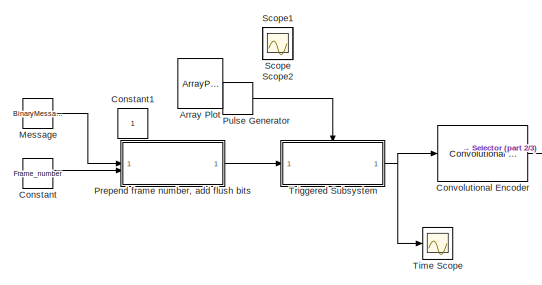
[diagram: root canvas - part 1/3, top left region]
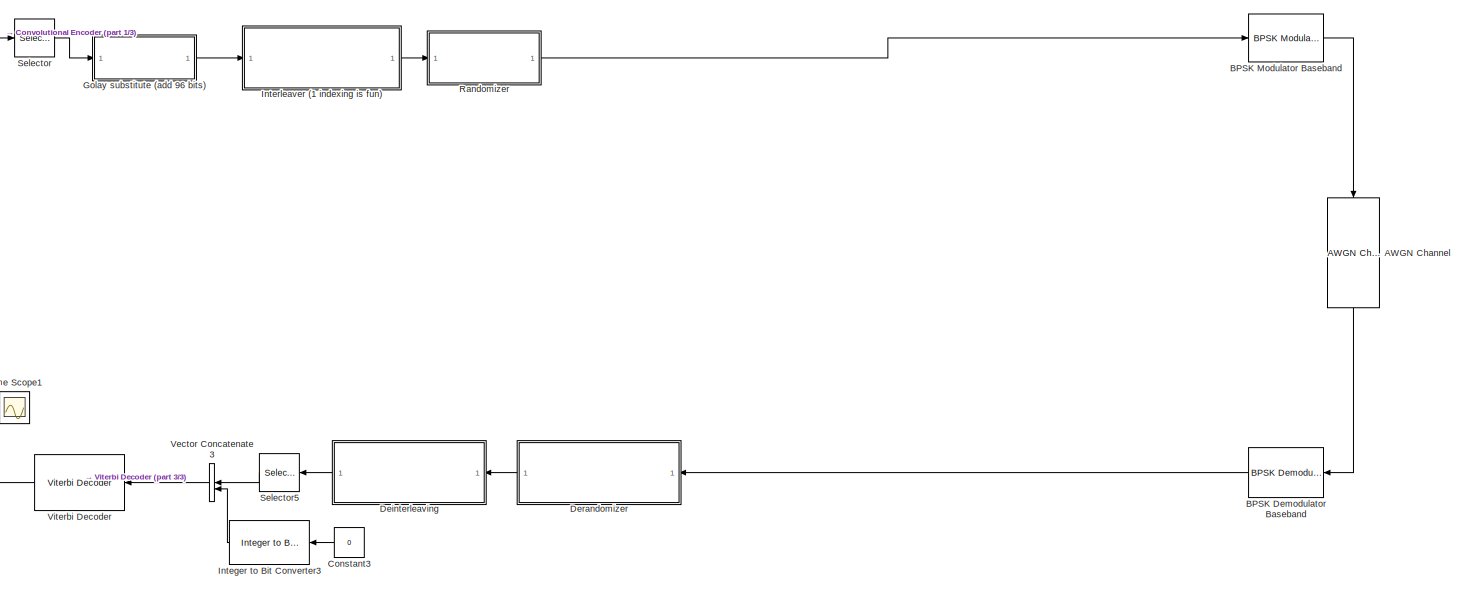
[diagram: root canvas - part 2/3, most of the canvas]
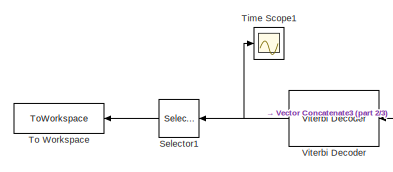
[diagram: root canvas - part 3/3, bottom left region]
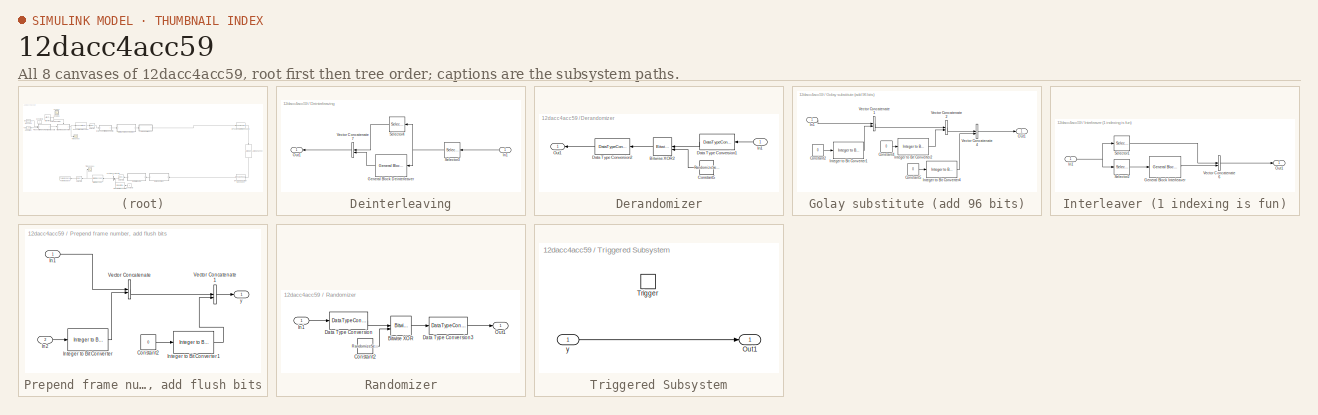
[diagram: thumbnail index - all 8 canvases of the model, root first then tree order]
MODEL slx_12dacc4acc59
KIND model
CONFIG AbsTol = auto
CONFIG EnableMultiTasking = off
CONFIG FixedStep = auto
CONFIG MaxStep = auto
CONFIG MinStep = auto
CONFIG RelTol = 1e-3
CONFIG SampleTimeConstraint = Unconstrained
CONFIG SolverName = VariableStepAuto
CONFIG StartTime = 0.0
CONFIG StopTime = 5
BLOCK [Constant]  Message
  Value = BinaryMessage
BLOCK [Reference] AWGN Channel  REF=commchan3/AWGN
Channel
  NameLocation = left
  SourceBlock = commchan3/AWGN\nChannel
  SourceType = AWGN Channel
BLOCK [ArrayPlot] Array Plot
  DefaultConfigurationName = dsp.scopes.ArrayPlotBlockSpecification
  GraphicalSettings = {"Style":{"BackgroundColor":[0.12941176470588237,0.12941176470588237,0.12941176470588237],"AxesColor":[0.07058823529411765,0.07058823529411765,0.07058823529411765],"LabelsColor":[0.8509803921568627,0.8509803921568627,0.8509803921568627],"PreserveColors":false,"Visible":[true],"LineStyle":["-"],"LineWidth":[1.5],"BarWidth":[0.9],"LineColor":[[1,0.9098039215686274,0.39215686274509803]],"LineFaceAlph...<+604ch>
  IOType = viewer
  IsFloating = on
  MultipleDisplayCache = {"PlotAsMagnitudePhase":[false],"ShowGrid":[true],"ShowLegend":[false],"Title":[""],"XLabel":[""],"YLabel":["Amplitude"],"YLimits":["[-10 10]"]}
  ScopeFrameLocation = window
  WasSavedAsWebScope = on
  WindowPosition = [609.000000,57.000000,800.000000,500.000000,]
  YLimits = [-10 10]
BLOCK [Reference] BPSK Demodulator Baseband  REF=commdigbbndpm3/BPSK
Demodulator
Baseband
  LibrarySourceBlock = commhdldigbbndpm/BPSK\nDemodulator\nBaseband
  NameLocation = top
  SourceBlock = commdigbbndpm3/BPSK\nDemodulator\nBaseband
  SourceType = BPSK Demodulator Baseband
BLOCK [Reference] BPSK Modulator Baseband  REF=commdigbbndpm3/BPSK
Modulator
Baseband
  LibrarySourceBlock = commhdldigbbndpm/BPSK\nModulator\nBaseband
  SourceBlock = commdigbbndpm3/BPSK\nModulator\nBaseband
  SourceType = BPSK Modulator Baseband
BLOCK [Constant] Constant
  Value = Frame_number
BLOCK [Constant] Constant1
  IOType = siggen
BLOCK [Constant] Constant3
  NameLocation = top
  Value = 0
BLOCK [Reference] Convolutional Encoder  REF=commcnvcod2/Convolutional
Encoder
  LibrarySourceBlock = commhdlcnvcod/Convolutional\nEncoder
  SourceBlock = commcnvcod2/Convolutional\nEncoder
  SourceType = Convolutional Encoder
BLOCK [SubSystem] Deinterleaving
  NameLocation = top
BLOCK [Reference] Deinterleaving/General Block Deinterleaver  REF=commblkintrlv2/General Block
Deinterleaver
  NameLocation = top
  SourceBlock = commblkintrlv2/General Block\nDeinterleaver
  SourceType = General Block Deinterleaver
  StatePerturbationForJacobian = 1.0e-05
BLOCK [Inport] Deinterleaving/In1
BLOCK [Outport] Deinterleaving/Out1
BLOCK [Selector] Deinterleaving/Selector3
  IndexOptions = Index vector (dialog)
  Indices = [2:368]
  NameLocation = top
  OutputSizes = 1
BLOCK [Selector] Deinterleaving/Selector4
  IndexOptions = Index vector (dialog)
  Indices = [1]
  NameLocation = top
  OutputSizes = 1
BLOCK [Concatenate] Deinterleaving/Vector Concatenate7
  NameLocation = top
BLOCK [SubSystem] Derandomizer
  NameLocation = top
BLOCK [Reference] Derandomizer/Bitwise XOR2  REF=simulink/Logic and Bit
Operations/Bitwise
Operator
  LibrarySourceBlock = simulink/Quick Insert/Logic and Bit\nOperations/Bitwise XOR
  NameLocation = top
  SourceBlock = simulink/Logic and Bit\nOperations/Bitwise\nOperator
  SourceType = Bitwise Operator
BLOCK [Constant] Derandomizer/Constant5
  NameLocation = top
  Value = RandomizeSequence
BLOCK [DataTypeConversion] Derandomizer/Data Type Conversion1
  NameLocation = top
  OutDataTypeStr = boolean
  RndMeth = Floor
  SaturateOnIntegerOverflow = off
BLOCK [DataTypeConversion] Derandomizer/Data Type Conversion2
  NameLocation = top
  OutDataTypeStr = double
  RndMeth = Floor
  SaturateOnIntegerOverflow = off
BLOCK [Inport] Derandomizer/In1
BLOCK [Outport] Derandomizer/Out1
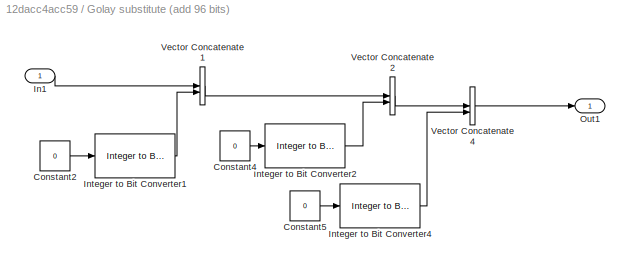
BLOCK [SubSystem] Golay substitute (add 96 bits)
BLOCK [Constant] Golay substitute (add 96 bits)/Constant2
  Value = 0
BLOCK [Constant] Golay substitute (add 96 bits)/Constant4
  Value = 0
BLOCK [Constant] Golay substitute (add 96 bits)/Constant5
  Value = 0
BLOCK [Inport] Golay substitute (add 96 bits)/In1
BLOCK [Reference] Golay substitute (add 96 bits)/Integer to Bit Converter1  REF=simulink/Logic and Bit
Operations/Integer to Bit
Converter
  SourceBlock = simulink/Logic and Bit\nOperations/Integer to Bit\nConverter
  SourceType = Integer to Bit Converter
BLOCK [Reference] Golay substitute (add 96 bits)/Integer to Bit Converter2  REF=simulink/Logic and Bit
Operations/Integer to Bit
Converter
  SourceBlock = simulink/Logic and Bit\nOperations/Integer to Bit\nConverter
  SourceType = Integer to Bit Converter
BLOCK [Reference] Golay substitute (add 96 bits)/Integer to Bit Converter4  REF=simulink/Logic and Bit
Operations/Integer to Bit
Converter
  SourceBlock = simulink/Logic and Bit\nOperations/Integer to Bit\nConverter
  SourceType = Integer to Bit Converter
BLOCK [Outport] Golay substitute (add 96 bits)/Out1
BLOCK [Concatenate] Golay substitute (add 96 bits)/Vector Concatenate1
BLOCK [Concatenate] Golay substitute (add 96 bits)/Vector Concatenate2
BLOCK [Concatenate] Golay substitute (add 96 bits)/Vector Concatenate4
BLOCK [Reference] Integer to Bit Converter3  REF=simulink/Logic and Bit
Operations/Integer to Bit
Converter
  NameLocation = top
  SourceBlock = simulink/Logic and Bit\nOperations/Integer to Bit\nConverter
  SourceType = Integer to Bit Converter
BLOCK [SubSystem] Interleaver (1 indexing is fun)
BLOCK [Reference] Interleaver (1 indexing is fun)/General Block Interleaver  REF=commblkintrlv2/General Block
Interleaver
  SourceBlock = commblkintrlv2/General Block\nInterleaver
  SourceType = General Block Interleaver
  StatePerturbationForJacobian = 1.0e-05
BLOCK [Inport] Interleaver (1 indexing is fun)/In1
BLOCK [Outport] Interleaver (1 indexing is fun)/Out1
BLOCK [Selector] Interleaver (1 indexing is fun)/Selector1
  IndexOptions = Index vector (dialog)
  Indices = [1]
  OutputSizes = 1
BLOCK [Selector] Interleaver (1 indexing is fun)/Selector2
  IndexOptions = Index vector (dialog)
  Indices = [2:368]
  OutputSizes = 1
BLOCK [Concatenate] Interleaver (1 indexing is fun)/Vector Concatenate6
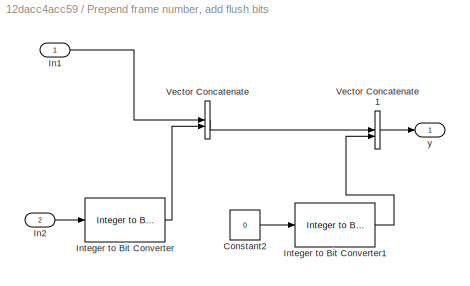
BLOCK [SubSystem] Prepend frame number, add flush bits
BLOCK [Constant] Prepend frame number, add flush bits/Constant2
  Value = 0
BLOCK [Inport] Prepend frame number, add flush bits/In1
BLOCK [Inport] Prepend frame number, add flush bits/In2
  Port = 2
BLOCK [Reference] Prepend frame number, add flush bits/Integer to Bit Converter  REF=simulink/Logic and Bit
Operations/Integer to Bit
Converter
  SourceBlock = simulink/Logic and Bit\nOperations/Integer to Bit\nConverter
  SourceType = Integer to Bit Converter
BLOCK [Reference] Prepend frame number, add flush bits/Integer to Bit Converter1  REF=simulink/Logic and Bit
Operations/Integer to Bit
Converter
  SourceBlock = simulink/Logic and Bit\nOperations/Integer to Bit\nConverter
  SourceType = Integer to Bit Converter
BLOCK [Concatenate] Prepend frame number, add flush bits/Vector Concatenate
BLOCK [Concatenate] Prepend frame number, add flush bits/Vector Concatenate1
BLOCK [Outport] Prepend frame number, add flush bits/y
BLOCK [DiscretePulseGenerator] Pulse Generator
BLOCK [SubSystem] Randomizer
BLOCK [Reference] Randomizer/Bitwise XOR  REF=simulink/Logic and Bit
Operations/Bitwise
Operator
  LibrarySourceBlock = simulink/Quick Insert/Logic and Bit\nOperations/Bitwise XOR
  SourceBlock = simulink/Logic and Bit\nOperations/Bitwise\nOperator
  SourceType = Bitwise Operator
BLOCK [Constant] Randomizer/Constant2
  Value = RandomizeSequence
BLOCK [DataTypeConversion] Randomizer/Data Type Conversion
  OutDataTypeStr = boolean
  RndMeth = Floor
  SaturateOnIntegerOverflow = off
BLOCK [DataTypeConversion] Randomizer/Data Type Conversion3
  OutDataTypeStr = double
  RndMeth = Floor
  SaturateOnIntegerOverflow = off
BLOCK [Inport] Randomizer/In1
BLOCK [Outport] Randomizer/Out1
BLOCK [Scope] Scope
  Floating = off
  IOType = viewer
  NumInputPorts = 1
  ScopeSpecificationString = Simulink.scopes.TimeScopeBlockCfg('CurrentConfiguration', extmgr.ConfigurationSet(extmgr.Configuration('Core','General UI',true),extmgr.Configuration('Core','Source UI',true),extmgr.Configuration('Sources','WiredSimulink',true,'DataLoggingVariableName','ScopeData1'),extmgr.Configuration('Visuals','Time Domain',true,'SerializedDisplays',{struct('MinYLimReal','-0.125','MaxYLimReal','1.125','YLabelRe...<+6619ch>
BLOCK [Scope] Scope1
  Floating = off
  IOType = viewer
  NumInputPorts = 1
  ScopeSpecificationString = Simulink.scopes.TimeScopeBlockCfg('CurrentConfiguration', extmgr.ConfigurationSet(extmgr.Configuration('Core','General UI',true),extmgr.Configuration('Core','Source UI',true),extmgr.Configuration('Sources','WiredSimulink',true,'DataLoggingVariableName','ScopeData1'),extmgr.Configuration('Visuals','Time Domain',true,'SerializedDisplays',{struct('MinYLimReal','-0.125','MaxYLimReal','1.125','YLabelRe...<+1467ch>
BLOCK [Scope] Scope2
  Floating = off
  IOType = viewer
  NumInputPorts = 1
  ScopeSpecificationString = Simulink.scopes.TimeScopeBlockCfg('CurrentConfiguration', extmgr.ConfigurationSet(extmgr.Configuration('Core','General UI',true),extmgr.Configuration('Core','Source UI',true),extmgr.Configuration('Sources','WiredSimulink',true,'DataLoggingVariableName','ScopeData1'),extmgr.Configuration('Visuals','Time Domain',true,'SerializedDisplays',{struct('MinYLimReal','-10.00000','MaxYLimReal','10.00000','YL...<+1454ch>
BLOCK [Selector] Selector
  IndexOptions = Index vector (dialog)
  Indices = [1:272]
  OutputSizes = 1
BLOCK [Selector] Selector1
  IndexOptions = Index vector (dialog)
  Indices = [1:144]
  NameLocation = top
  OutputSizes = 1
BLOCK [Selector] Selector5
  IndexOptions = Index vector (dialog)
  Indices = [1:272]
  NameLocation = top
  OutputSizes = 1
BLOCK [Scope] Time Scope
  DefaultConfigurationName = spbscopes.TimeScopeBlockCfg
  Floating = off
  NumInputPorts = 1
  ScopeSpecificationString = spbscopes.TimeScopeBlockCfg('CurrentConfiguration', extmgr.ConfigurationSet(extmgr.Configuration('Core','General UI',true,'FigureColor',[0.156862745098039 0.156862745098039 0.156862745098039]),extmgr.Configuration('Core','Source UI',true),extmgr.Configuration('Sources','WiredSimulink',true,'DataLoggingVariableName','ScopeData2'),extmgr.Configuration('Visuals','Time Domain',true,'DisplayPropertyDef...<+1645ch>
  UserDataPersistent = on
BLOCK [Scope] Time Scope1
  DefaultConfigurationName = spbscopes.TimeScopeBlockCfg
  Floating = off
  NumInputPorts = 1
  ScopeSpecificationString = spbscopes.TimeScopeBlockCfg('CurrentConfiguration', extmgr.ConfigurationSet(extmgr.Configuration('Core','General UI',true,'FigureColor',[0.156862745098039 0.156862745098039 0.156862745098039]),extmgr.Configuration('Core','Source UI',true),extmgr.Configuration('Sources','WiredSimulink',true,'DataLoggingVariableName','ScopeData3'),extmgr.Configuration('Visuals','Time Domain',true,'DisplayPropertyDef...<+1639ch>
  UserDataPersistent = on
BLOCK [ToWorkspace] To Workspace
  FixptAsFi = on
  MaxDataPoints = inf
  NameLocation = top
  SampleTime = -1
  Save2DSignal = 2-D array (concatenate along first dimension)
  VariableName = simout
BLOCK [SubSystem] Triggered Subsystem
  TreatAsAtomicUnit = on
BLOCK [Outport] Triggered Subsystem/Out1
BLOCK [TriggerPort] Triggered Subsystem/Trigger
  StatesWhenEnabling = held
  VariantControl = (inherit)
BLOCK [Inport] Triggered Subsystem/y
BLOCK [Concatenate] Vector Concatenate3
  NameLocation = top
BLOCK [Reference] Viterbi Decoder  REF=commcnvcod2/Viterbi Decoder
  LibrarySourceBlock = commhdlcnvcod/Viterbi Decoder
  NameLocation = top
  SourceBlock = commcnvcod2/Viterbi Decoder
  SourceType = Viterbi Decoder
LINE  Message:1 -> Prepend frame number, add flush bits:1
LINE AWGN Channel:1 -> BPSK Demodulator Baseband:1
LINE BPSK Demodulator Baseband:1 -> Derandomizer:1
LINE BPSK Modulator Baseband:1 -> AWGN Channel:1
LINE Constant3:1 -> Integer to Bit Converter3:1
LINE Constant:1 -> Prepend frame number, add flush bits:2
LINE Convolutional Encoder:1 -> Selector:1
LINE Deinterleaving/General Block Deinterleaver:1 -> Deinterleaving/Vector Concatenate7:2
LINE Deinterleaving/In1:1 -> Deinterleaving/Selector3:1
NET Deinterleaving/Selector3:1 -> Deinterleaving/General Block Deinterleaver:1, Deinterleaving/Selector4:1
LINE Deinterleaving/Selector4:1 -> Deinterleaving/Vector Concatenate7:1
LINE Deinterleaving/Vector Concatenate7:1 -> Deinterleaving/Out1:1
LINE Deinterleaving:1 -> Selector5:1
LINE Derandomizer/Bitwise XOR2:1 -> Derandomizer/Data Type Conversion2:1
LINE Derandomizer/Constant5:1 -> Derandomizer/Bitwise XOR2:2
LINE Derandomizer/Data Type Conversion1:1 -> Derandomizer/Bitwise XOR2:1
LINE Derandomizer/Data Type Conversion2:1 -> Derandomizer/Out1:1
LINE Derandomizer/In1:1 -> Derandomizer/Data Type Conversion1:1
LINE Derandomizer:1 -> Deinterleaving:1
LINE Golay substitute (add 96 bits)/Constant2:1 -> Golay substitute (add 96 bits)/Integer to Bit Converter1:1
LINE Golay substitute (add 96 bits)/Constant4:1 -> Golay substitute (add 96 bits)/Integer to Bit Converter2:1
LINE Golay substitute (add 96 bits)/Constant5:1 -> Golay substitute (add 96 bits)/Integer to Bit Converter4:1
LINE Golay substitute (add 96 bits)/In1:1 -> Golay substitute (add 96 bits)/Vector Concatenate1:1
LINE Golay substitute (add 96 bits)/Integer to Bit Converter1:1 -> Golay substitute (add 96 bits)/Vector Concatenate1:2
LINE Golay substitute (add 96 bits)/Integer to Bit Converter2:1 -> Golay substitute (add 96 bits)/Vector Concatenate2:2
LINE Golay substitute (add 96 bits)/Integer to Bit Converter4:1 -> Golay substitute (add 96 bits)/Vector Concatenate4:2
LINE Golay substitute (add 96 bits)/Vector Concatenate1:1 -> Golay substitute (add 96 bits)/Vector Concatenate2:1
LINE Golay substitute (add 96 bits)/Vector Concatenate2:1 -> Golay substitute (add 96 bits)/Vector Concatenate4:1
LINE Golay substitute (add 96 bits)/Vector Concatenate4:1 -> Golay substitute (add 96 bits)/Out1:1
LINE Golay substitute (add 96 bits):1 -> Interleaver (1 indexing is fun):1
LINE Integer to Bit Converter3:1 -> Vector Concatenate3:2
LINE Interleaver (1 indexing is fun)/General Block Interleaver:1 -> Interleaver (1 indexing is fun)/Vector Concatenate6:2
NET Interleaver (1 indexing is fun)/In1:1 -> Interleaver (1 indexing is fun)/Selector1:1, Interleaver (1 indexing is fun)/Selector2:1
LINE Interleaver (1 indexing is fun)/Selector1:1 -> Interleaver (1 indexing is fun)/Vector Concatenate6:1
LINE Interleaver (1 indexing is fun)/Selector2:1 -> Interleaver (1 indexing is fun)/General Block Interleaver:1
LINE Interleaver (1 indexing is fun)/Vector Concatenate6:1 -> Interleaver (1 indexing is fun)/Out1:1
LINE Interleaver (1 indexing is fun):1 -> Randomizer:1
LINE Prepend frame number, add flush bits/Constant2:1 -> Prepend frame number, add flush bits/Integer to Bit Converter1:1
LINE Prepend frame number, add flush bits/In1:1 -> Prepend frame number, add flush bits/Vector Concatenate:1
LINE Prepend frame number, add flush bits/In2:1 -> Prepend frame number, add flush bits/Integer to Bit Converter:1
LINE Prepend frame number, add flush bits/Integer to Bit Converter1:1 -> Prepend frame number, add flush bits/Vector Concatenate1:2
LINE Prepend frame number, add flush bits/Integer to Bit Converter:1 -> Prepend frame number, add flush bits/Vector Concatenate:2
LINE Prepend frame number, add flush bits/Vector Concatenate1:1 -> Prepend frame number, add flush bits/y:1
LINE Prepend frame number, add flush bits/Vector Concatenate:1 -> Prepend frame number, add flush bits/Vector Concatenate1:1
LINE Prepend frame number, add flush bits:1 -> Triggered Subsystem:1
LINE Pulse Generator:1 -> Triggered Subsystem:trigger
LINE Randomizer/Bitwise XOR:1 -> Randomizer/Data Type Conversion3:1
LINE Randomizer/Constant2:1 -> Randomizer/Bitwise XOR:2
LINE Randomizer/Data Type Conversion3:1 -> Randomizer/Out1:1
LINE Randomizer/Data Type Conversion:1 -> Randomizer/Bitwise XOR:1
LINE Randomizer/In1:1 -> Randomizer/Data Type Conversion:1
LINE Randomizer:1 -> BPSK Modulator Baseband:1
LINE Selector1:1 -> To Workspace:1
LINE Selector5:1 -> Vector Concatenate3:1
LINE Selector:1 -> Golay substitute (add 96 bits):1
LINE Triggered Subsystem/y:1 -> Triggered Subsystem/Out1:1
NET Triggered Subsystem:1 -> Convolutional Encoder:1, Time Scope:1
LINE Vector Concatenate3:1 -> Viterbi Decoder:1
NET Viterbi Decoder:1 -> Selector1:1, Time Scope1:1
note: NET lines group one-source signal fan-out (src -> all destinations, sorted); 1:1 wires keep LINE
